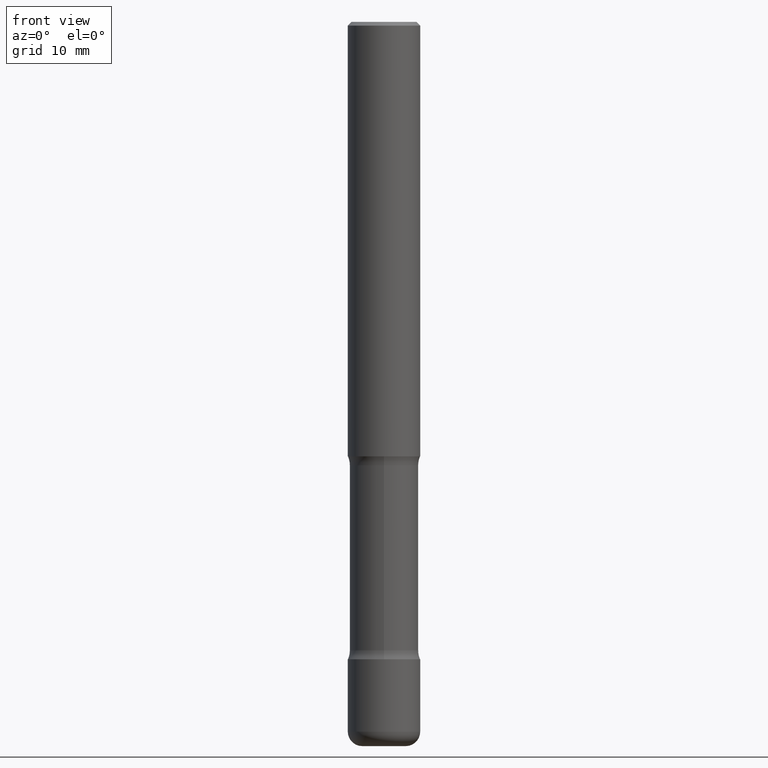
[diagram: clean part render]
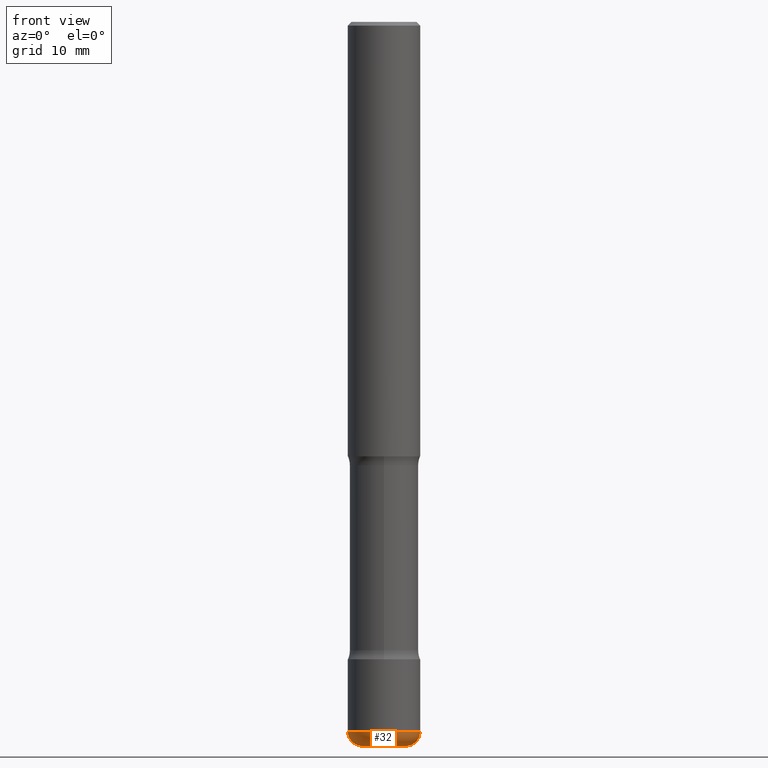
[diagram: same view with one face highlighted and labeled with its STEP entity id]
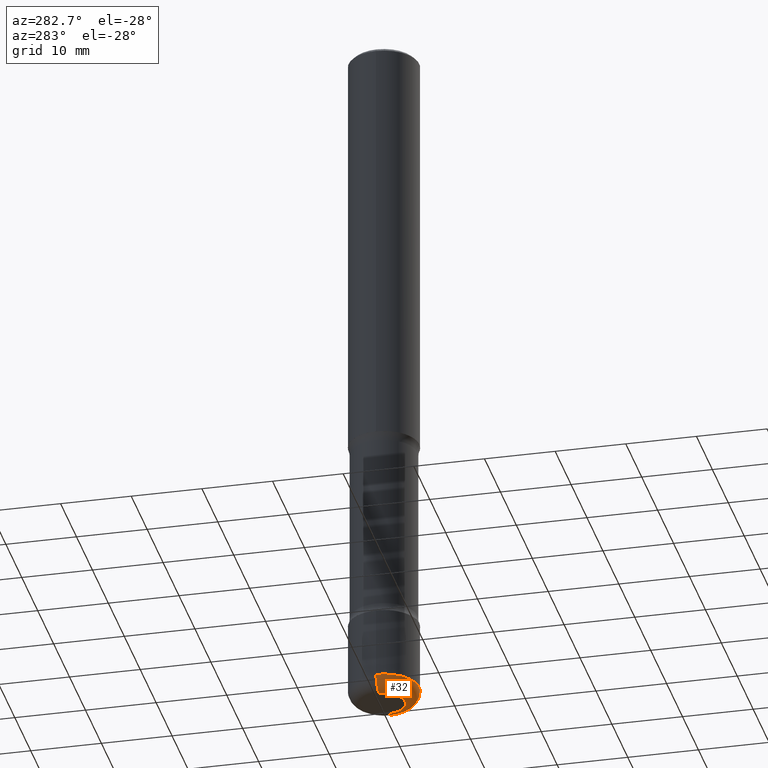
[diagram: same view with one face highlighted and labeled with its STEP entity id]
A machine part, front view. The second image highlights one B-rep face of the part: STEP entity #32.
A second angle (auxiliary view) of the same face is appended — the face is thin or edge-on in the first view.
In plain terms, the highlighted toroidal blend (fillet) surface has major radius 3.001 mm and minor (blend) radius 1.999 mm.
Its self-contained STEP definition (entity closure, byte-faithful):
#32 = ADVANCED_FACE ( 'NONE', ( #43 ), #145, .T. ) ;
#43 = FACE_OUTER_BOUND ( 'NONE', #407, .T. ) ;
#44 = CARTESIAN_POINT ( 'NONE',  ( 9.435352294904112142E-29, -1.347118244965850850E-14, -3.858300000000000285 ) ) ;
#45 = AXIS2_PLACEMENT_3D ( 'NONE', #175, #378, #472 ) ;
#46 = AXIS2_PLACEMENT_3D ( 'NONE', #292, #123, #112 ) ;
#67 = EDGE_CURVE ( 'NONE', #234, #417, #286, .T. ) ;
#94 = AXIS2_PLACEMENT_3D ( 'NONE', #44, #511, #127 ) ;
#101 = VERTEX_POINT ( 'NONE', #420 ) ;
#112 = DIRECTION ( 'NONE',  ( 1.000000000000000000, -6.982962677686268288E-15, 0.000000000000000000 ) ) ;
#123 = DIRECTION ( 'NONE',  ( -2.445468806185136597E-29, 3.491481338843145583E-15, 1.000000000000000000 ) ) ;
#127 = DIRECTION ( 'NONE',  ( 1.000000000000000000, -6.982962677686272233E-15, 4.883557194083114022E-29 ) ) ;
#145 = TOROIDAL_SURFACE ( 'NONE', #94, 0.1181500000000002409, 0.07869999999999995055 ) ;
#149 = ORIENTED_EDGE ( 'NONE', *, *, #67, .T. ) ;
#161 = ORIENTED_EDGE ( 'NONE', *, *, #309, .F. ) ;
#175 = CARTESIAN_POINT ( 'NONE',  ( 0.1181500000000002409, -1.429621949002714343E-14, -3.858300000000000285 ) ) ;
#188 = EDGE_CURVE ( 'NONE', #101, #417, #209, .T. ) ;
#209 = CIRCLE ( 'NONE', #435, 0.1968500000000002470 ) ;
#225 = CARTESIAN_POINT ( 'NONE',  ( 9.435352294904112142E-29, -1.347118244965850850E-14, -3.858300000000000285 ) ) ;
#230 = ORIENTED_EDGE ( 'NONE', *, *, #188, .F. ) ;
#231 = CARTESIAN_POINT ( 'NONE',  ( 0.1181500000000002687, -1.457099907139409992E-14, -3.937000000000000277 ) ) ;
#234 = VERTEX_POINT ( 'NONE', #231 ) ;
#256 = DIRECTION ( 'NONE',  ( -2.445468806185136597E-29, 3.491481338843145583E-15, 1.000000000000000000 ) ) ;
#265 = CARTESIAN_POINT ( 'NONE',  ( -0.1181500000000002409, -1.263167620735794871E-14, -3.858300000000000285 ) ) ;
#286 = CIRCLE ( 'NONE', #45, 0.07869999999999993667 ) ;
#292 = CARTESIAN_POINT ( 'NONE',  ( 9.627810689950883669E-29, -1.374596203102546341E-14, -3.937000000000000277 ) ) ;
#309 = EDGE_CURVE ( 'NONE', #490, #101, #331, .T. ) ;
#331 = CIRCLE ( 'NONE', #513, 0.07869999999999993667 ) ;
#334 = CARTESIAN_POINT ( 'NONE',  ( -0.1181500000000002687, -1.248946743151982756E-14, -3.937000000000000277 ) ) ;
#339 = DIRECTION ( 'NONE',  ( 1.000000000000000000, -6.982962677686269866E-15, 0.000000000000000000 ) ) ;
#355 = DIRECTION ( 'NONE',  ( 7.105427357601001859E-15, 1.000000000000000000, -3.491481338843145583E-15 ) ) ;
#378 = DIRECTION ( 'NONE',  ( -6.982962677686266711E-15, -1.000000000000000000, 3.491481338843145583E-15 ) ) ;
#379 = EDGE_CURVE ( 'NONE', #490, #234, #522, .T. ) ;
#407 = EDGE_LOOP ( 'NONE', ( #161, #554, #149, #230 ) ) ;
#417 = VERTEX_POINT ( 'NONE', #501 ) ;
#420 = CARTESIAN_POINT ( 'NONE',  ( -0.1968500000000002192, -1.207247907431474834E-14, -3.858300000000000285 ) ) ;
#435 = AXIS2_PLACEMENT_3D ( 'NONE', #225, #256, #339 ) ;
#472 = DIRECTION ( 'NONE',  ( 1.000000000000000000, -6.982962677686275388E-15, 0.000000000000000000 ) ) ;
#480 = DIRECTION ( 'NONE',  ( -1.000000000000000000, 7.105427357600997914E-15, 0.000000000000000000 ) ) ;
#490 = VERTEX_POINT ( 'NONE', #334 ) ;
#501 = CARTESIAN_POINT ( 'NONE',  ( 0.1968500000000002192, -1.484577865276105326E-14, -3.858300000000000285 ) ) ;
#511 = DIRECTION ( 'NONE',  ( -2.445468806185136597E-29, 3.491481338843145583E-15, 1.000000000000000000 ) ) ;
#513 = AXIS2_PLACEMENT_3D ( 'NONE', #265, #355, #480 ) ;
#522 = CIRCLE ( 'NONE', #46, 0.1181500000000002687 ) ;
#554 = ORIENTED_EDGE ( 'NONE', *, *, #379, .T. ) ;